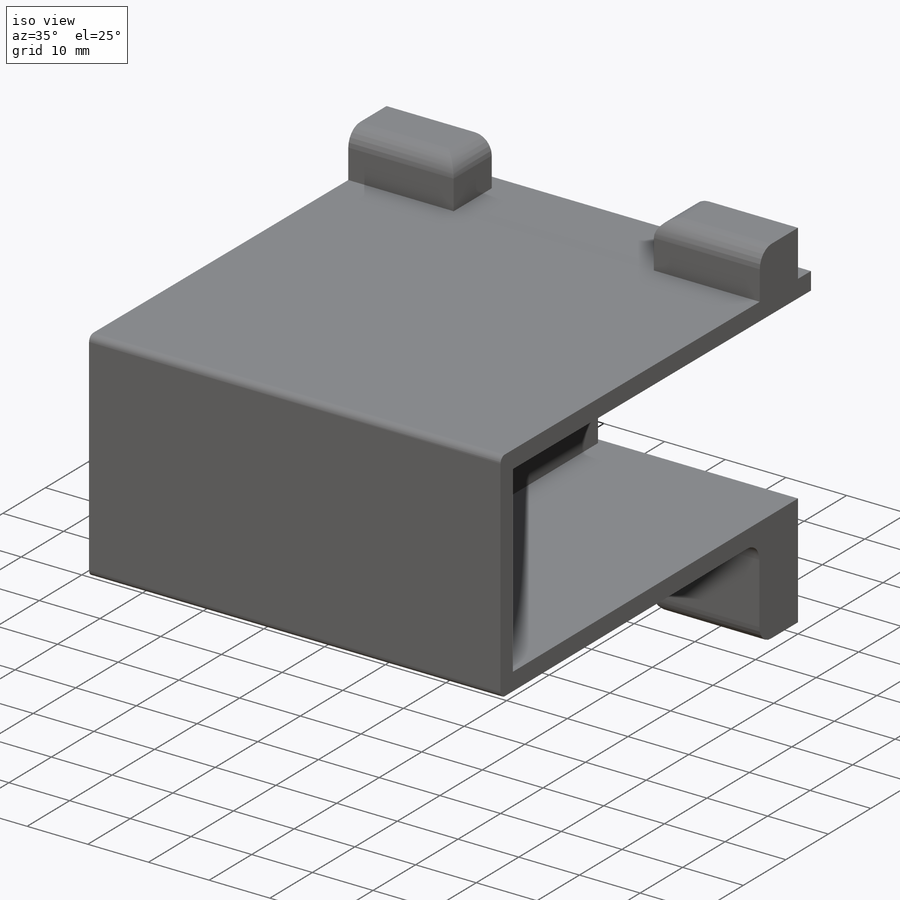
[diagram: iso view]
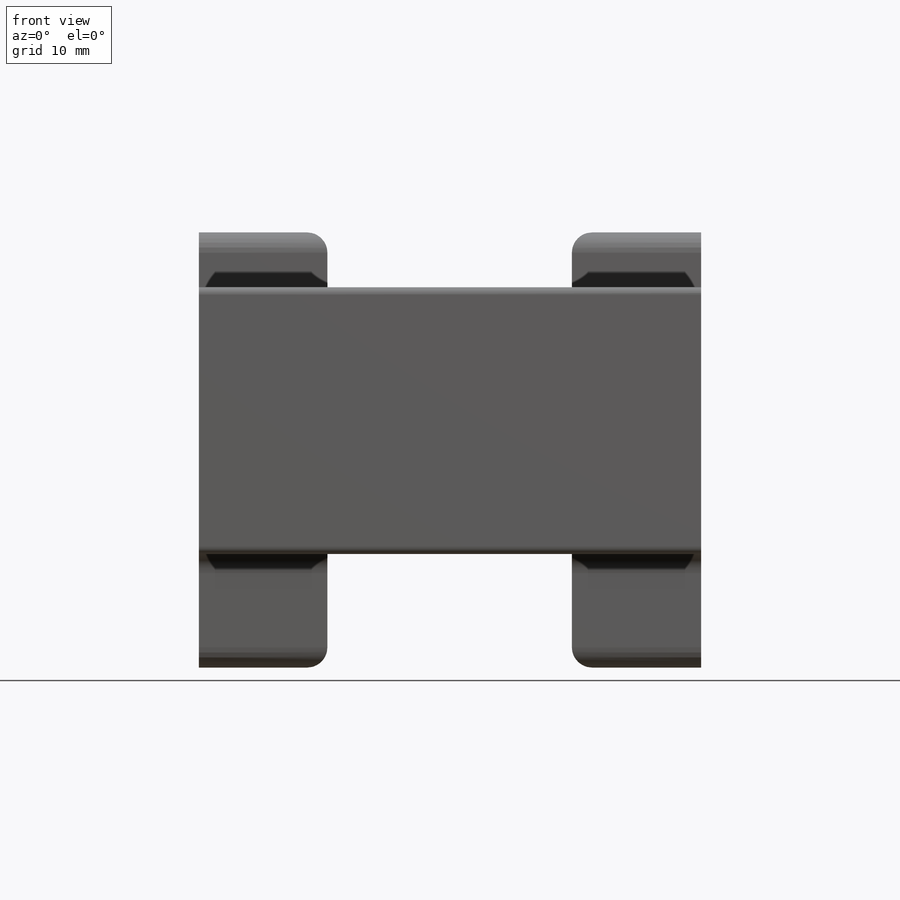
[diagram: front view]
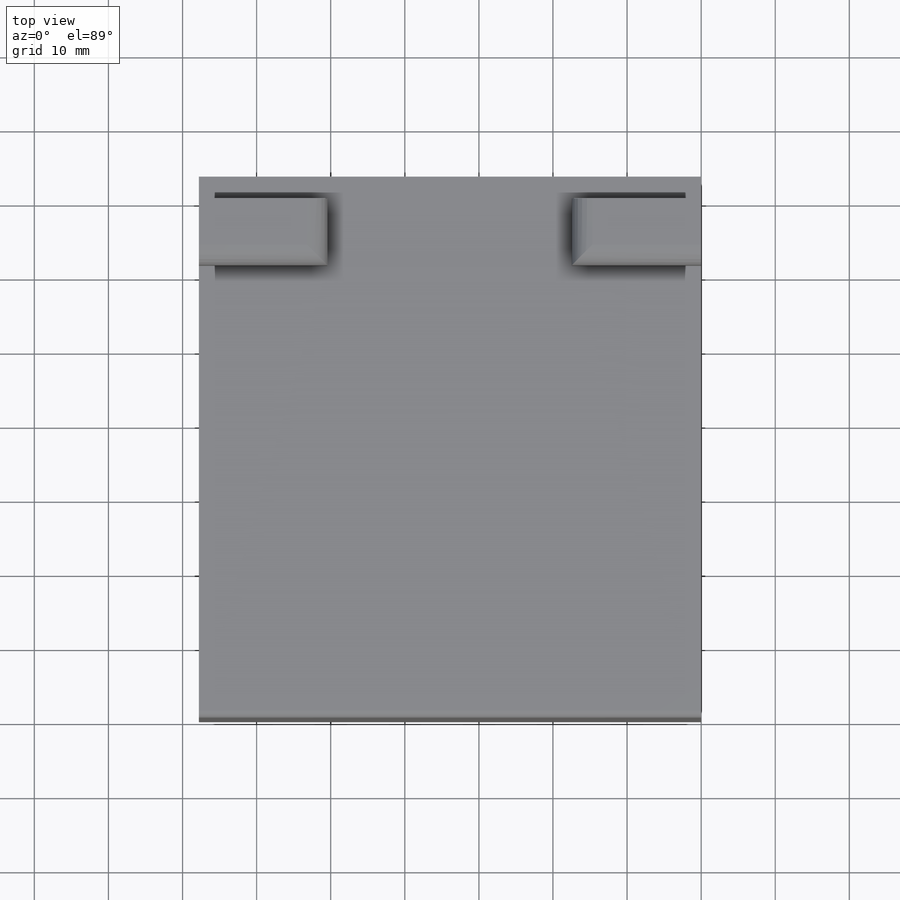
[diagram: top view]
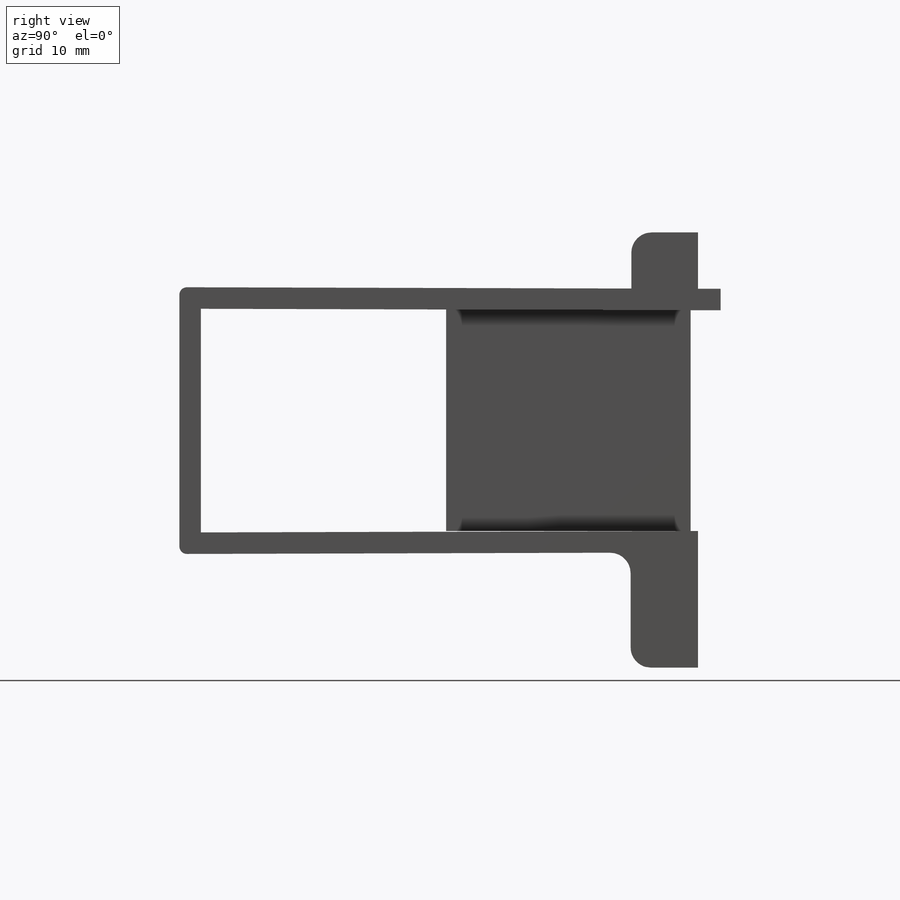
[diagram: right view]
SOLIDWORKS PART (.sldprt)
format: sldprt  version: not decoded by parser v0  size: 264,704 bytes
history: native  units: mm
features: plane x4, sketch x4, extrude x2, cut_extrude x2, fillet x2, material x1 (+9 scaffold rows collapsed)
feature tree (24):
  scaffold x9  (default folders/planes/origin — collapsed)
  material  "Material <nicht festgelegt>"
  plane  "Ebene vorne"
  plane  "Ebene oben"
  plane  "Ebene rechts"
  sketch  "Skizze1"  dims[c1.D1=18.44mm c1.D2=9.1mm c1.D3=2.9mm c1.D4=2.9mm c1.D5=~79.39901mm c2.D5=~0.168922deg c3.D5=~79.39901mm c4.D5=~0.168922deg c5.D5=2.9mm c5.D6=29.9mm c5.D7=2.9mm c5.D8=36.0mm c5.D9=70.0mm c5.D10=~11.585282mm c6.D10=~0.122771deg c7.D10=10.6mm c7.D11=~7.675158mm c8.D11=~0.122771deg c9.D11=9.0mm c9.D12=3.05mm c9.D9=~3.049993mm c9.D7=~4.815371mm c9.D6=2.9mm c9.D5=~2.904563mm c10.D6=29.8mm c10.D7=3.05mm c10.D9=7.6mm c10.D10=70.0mm c10.D12=2.9mm]
  extrude  "Aufsatz-Linear austragen1"  Depth=67.8mm
  sketch  "Skizze3"  dims[D1=33.0mm D2=33.0mm D3=17.45mm D4=17.45mm D5=2.09mm]
  cut_extrude  "Schnitt-Linear austragen1"  [1 undecoded]
  plane  "Ebene1"  Offset=1mm
  sketch  "Skizze4"  dims[D1=32.25mm D2=2.75mm D3=30.2mm]
  extrude  "Aufsatz-Linear austragen2"  [1 undecoded]
  fillet  "Verrundung1"  Radius=2.75mm
  fillet  "Verrundung3"  Radius=1mm
  sketch  "Skizze6"  dims[D1=34.0mm]
  cut_extrude  "Schnitt-Linear austragen2"  [1 undecoded]
decode coverage: 7 of 10 modeling features carry decoded parameters
note: ~ marks probable driven/reference dimensions
note: 3 parameter values undecoded
summary: no parameter record found for 3 features
note: suppression state not decoded; provenance and decode notes live in map.json
